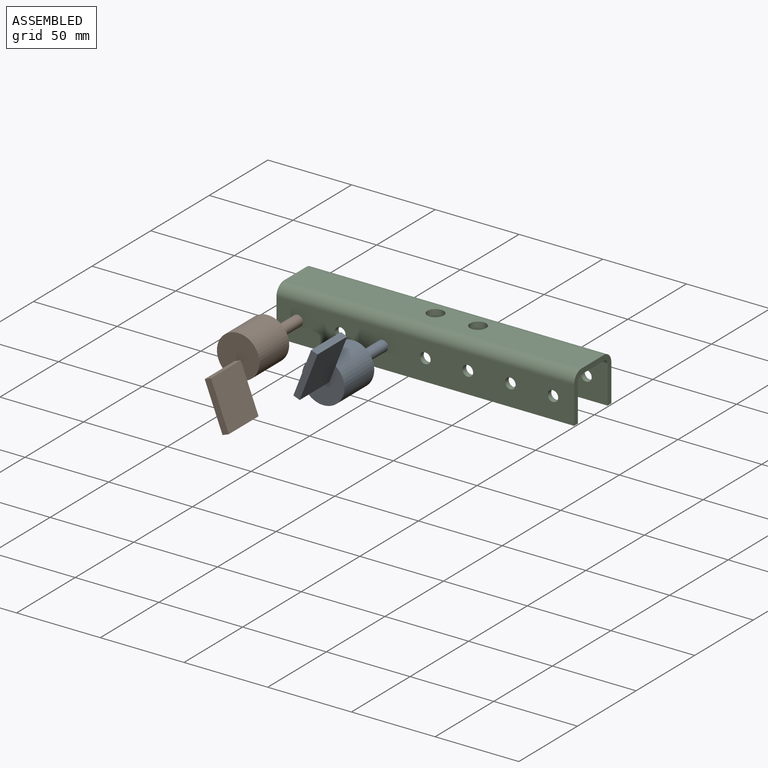
[diagram: assembled view]
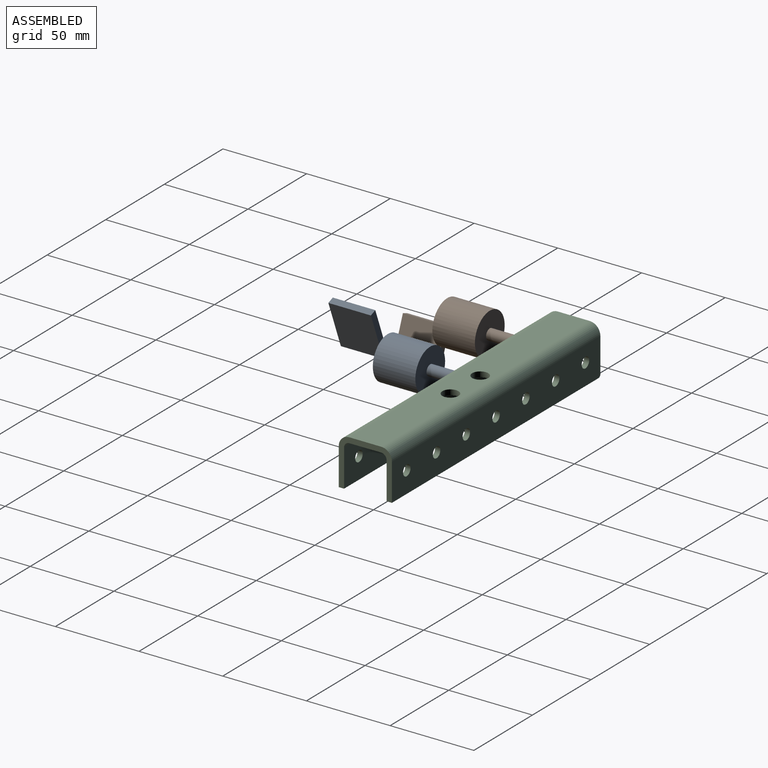
[diagram: assembled view, second angle]
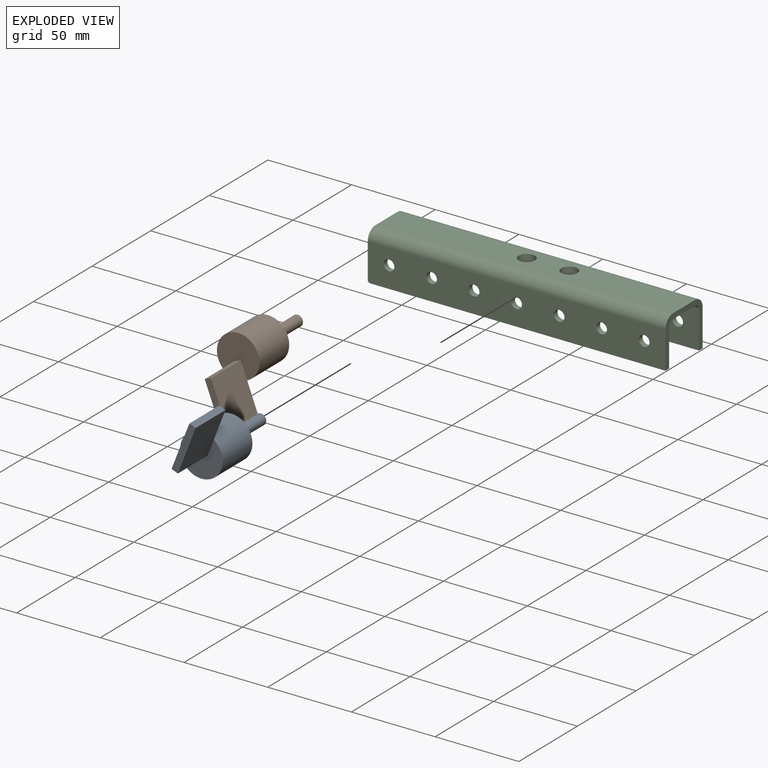
[diagram: exploded view]
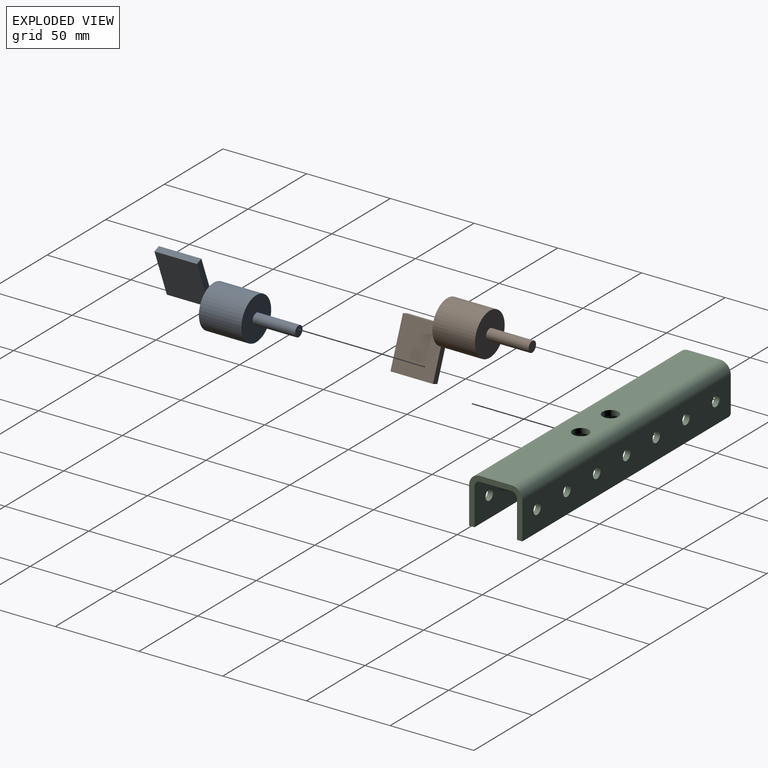
[diagram: exploded view, second angle]
ASSEMBLY  parts=3 mates=2
PART A: 11 faces, bbox 44.2x25.4x76.2 mm
  f0: plane 25.4x25.37mm, normal (0,0,1), area 464.3mm2, adj f1,f6,f7,f8
  f1: cylinder r=12.7mm len=25.4mm, axis (0,0,-1), area 2026.8mm2, adj f0,f2,f5
  f2: plane 25.4x25.4mm, normal (0,0,-1), area 475mm2, adj f1,f3
  f3: cylinder r=3.17mm len=25.4mm, axis (0,0,1), area 506.7mm2, adj f2,f4
  f4: plane 6.35x6.35mm, normal (0,0,-1), area 31.7mm2, adj f3
  f5: plane 19.16x4.03mm, normal (0,0,-1), area 76mm2, adj f1,f6,f8,f9
  f6: plane 29.39x25.4mm, normal (0,1,0), area 746.4mm2, adj f0,f5,f7,f9,f10
  f7: plane 25.4x4.03mm, normal (-1,0,0), area 102.3mm2, adj f0,f6,f8,f10
  f8: plane 29.39x25.4mm, normal (0,-1,0), area 746.4mm2, adj f0,f5,f7,f9,f10
  f9: plane 25.4x4.03mm, normal (1,0,0), area 102.3mm2, adj f5,f6,f8,f10
  f10: plane 29.39x4.03mm, normal (0,0,1), area 118.4mm2, adj f6,f7,f8,f9
PART B: same geometry as A
PART C: 32 faces, bbox 177.8x31.8x28.6 mm
  f0: plane 177.8x22.23mm, normal (0,1,0), area 3729.4mm2, adj f1,f3,f4,f5,f6,f7,f8,f9
  f1: cylinder r=3.17mm len=6.35mm, axis (0,1,0), area 63.3mm2, adj f0,f2
  f2: plane 177.8x22.23mm, normal (0,-1,0), area 3729.4mm2, adj f1,f3,f4,f5,f6,f7,f8,f9
  f3: cylinder r=3.17mm len=6.35mm, axis (0,1,0), area 63.3mm2, adj f0,f2
  f4: cylinder r=3.17mm len=6.35mm, axis (0,1,0), area 63.3mm2, adj f0,f2
  f5: cylinder r=3.17mm len=6.35mm, axis (0,1,0), area 63.3mm2, adj f0,f2
  f6: cylinder r=3.17mm len=6.35mm, axis (0,1,0), area 63.3mm2, adj f0,f2
  f7: cylinder r=3.17mm len=6.35mm, axis (0,1,0), area 63.3mm2, adj f0,f2
  f8: cylinder r=3.17mm len=6.35mm, axis (0,1,0), area 63.3mm2, adj f0,f2
  f9: plane 31.75x28.58mm, normal (1,0,0), area 249.1mm2, adj f0,f2,f10,f13,f14,f16,f18,f19
  f10: plane 176.28x3.18mm, normal (0,0,-1), area 559.7mm2, adj f0,f2,f9,f11
  f11: cylinder r=1.52mm len=3.18mm, axis (0,-1,0), area 7.6mm2, adj f0,f2,f10,f12
  f12: plane 31.75x27.05mm, normal (-1,0,0), area 239.4mm2, adj f0,f2,f11,f13,f14,f16,f18,f19
  f13: cylinder r=6.35mm len=177.8mm, axis (1,0,0), area 1773.5mm2, adj f0,f9,f12,f14
  f14: plane 177.8x19.05mm, normal (0,0,1), area 3240.8mm2, adj f9,f12,f13,f15,f17,f31
  f15: cylinder r=4.83mm len=9.65mm, axis (0,0,1), area 96.3mm2, adj f14,f16
  f16: plane 177.8x19.05mm, normal (0,0,-1), area 3240.8mm2, adj f9,f12,f15,f17,f18,f19
  f17: cylinder r=4.83mm len=9.65mm, axis (0,0,1), area 96.3mm2, adj f14,f16
  f18: cylinder r=3.17mm len=177.8mm, axis (1,0,0), area 886.7mm2, adj f2,f9,f12,f16
  f19: cylinder r=3.17mm len=177.8mm, axis (-1,0,0), area 886.7mm2, adj f9,f12,f16,f20
  f20: plane 177.8x22.23mm, normal (0,1,0), area 3729.4mm2, adj f9,f12,f19,f21,f23,f24,f25,f26
  f21: cylinder r=3.17mm len=6.35mm, axis (0,1,0), area 63.3mm2, adj f20,f22
  f22: plane 177.8x22.23mm, normal (0,-1,0), area 3729.4mm2, adj f9,f12,f21,f23,f24,f25,f26,f27
  f23: cylinder r=3.17mm len=6.35mm, axis (0,1,0), area 63.3mm2, adj f20,f22
  f24: cylinder r=3.17mm len=6.35mm, axis (0,1,0), area 63.3mm2, adj f20,f22
  f25: cylinder r=3.17mm len=6.35mm, axis (0,1,0), area 63.3mm2, adj f20,f22
  f26: cylinder r=3.17mm len=6.35mm, axis (0,1,0), area 63.3mm2, adj f20,f22
  f27: cylinder r=3.17mm len=6.35mm, axis (0,1,0), area 63.3mm2, adj f20,f22
  f28: cylinder r=3.17mm len=6.35mm, axis (0,1,0), area 63.3mm2, adj f20,f22
  f29: plane 176.28x3.18mm, normal (0,0,-1), area 559.7mm2, adj f9,f20,f22,f30
  f30: cylinder r=1.52mm len=3.18mm, axis (0,1,0), area 7.6mm2, adj f12,f20,f22,f29
  f31: cylinder r=6.35mm len=177.8mm, axis (-1,0,0), area 1773.5mm2, adj f9,f12,f14,f22
PLACE A rot(axis=(0.72,-0.49,0.49),108.6deg) t=(11.28,-28.5,-13.99)mm
PLACE B rot(axis=(0.72,0.49,-0.49),108.6deg) t=(-40.37,-28.5,-13.99)mm
PLACE C t=(-36.63,4.1,-1.12)mm fixed
MATE revolute A.f1 <-> C.f6  axis (0,-1,0) through (10.85,-3.1,-13.82)mm
MATE revolute B.f1 <-> C.f8  axis (0,-1,0) through (-39.95,-3.1,-13.82)mm
